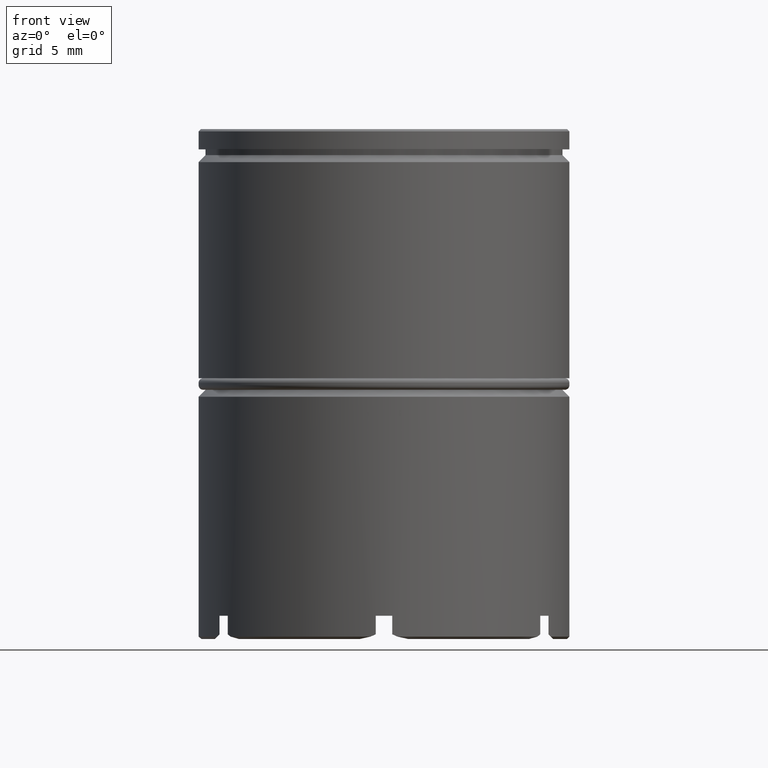
[diagram: clean part render]
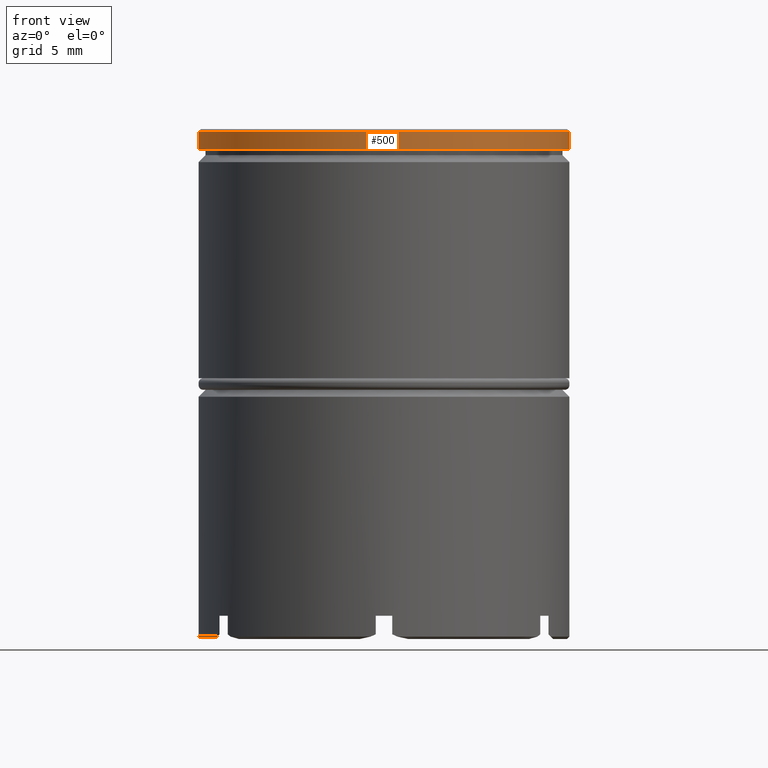
[diagram: same view with one face highlighted and labeled with its STEP entity id]
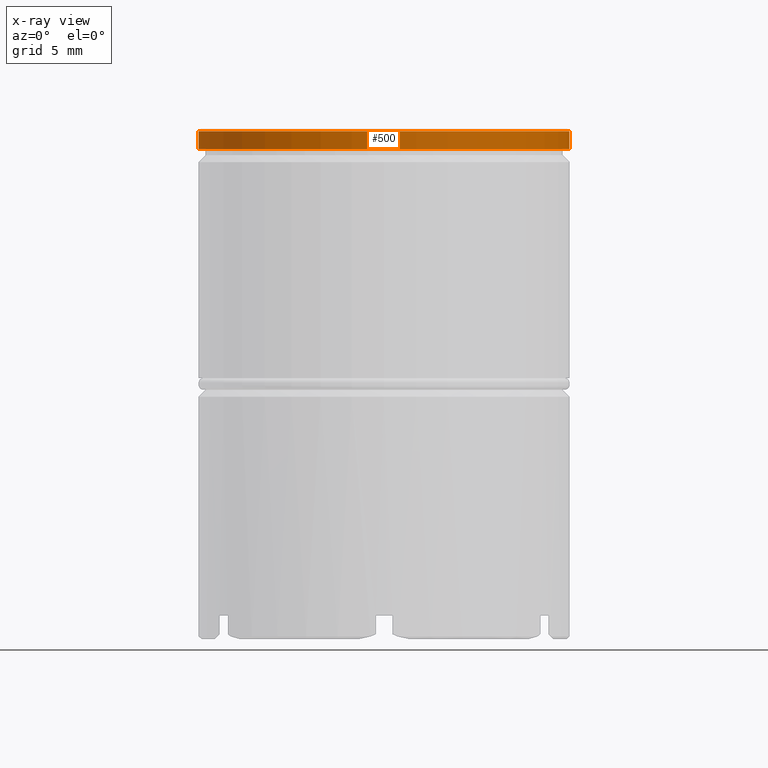
[diagram: x-ray of the same camera — body ghosted, the highlighted face saturated]
A machine part, front view. The second image highlights one B-rep face of the part: STEP entity #500.
The next image is the same camera in x-ray: the body ghosted, the highlighted face saturated — about 0% of this face is hidden behind the body in this view.
In plain terms, the highlighted cylindrical surface (partial cylindrical patch) has radius 8 mm, axis along (-0, -0, 1).
Its self-contained STEP definition (entity closure, byte-faithful):
#41 = DIRECTION ( 'NONE',  ( 1.000000000000000000, 0.000000000000000000, 0.000000000000000000 ) ) ;
#58 = EDGE_CURVE ( 'NONE', #1314, #184, #510, .T. ) ;
#135 = CARTESIAN_POINT ( 'NONE',  ( 8.000000000000000000, 0.000000000000000000, 0.000000000000000000 ) ) ;
#149 = DIRECTION ( 'NONE',  ( -0.000000000000000000, -0.000000000000000000, 1.000000000000000000 ) ) ;
#161 = CARTESIAN_POINT ( 'NONE',  ( -8.000000000000000000, 9.797174393178825657E-16, -0.8749999999999998890 ) ) ;
#174 = ORIENTED_EDGE ( 'NONE', *, *, #497, .T. ) ;
#175 = ORIENTED_EDGE ( 'NONE', *, *, #58, .T. ) ;
#184 = VERTEX_POINT ( 'NONE', #796 ) ;
#221 = VERTEX_POINT ( 'NONE', #482 ) ;
#262 = CARTESIAN_POINT ( 'NONE',  ( 0.000000000000000000, 0.000000000000000000, -0.8749999999999998890 ) ) ;
#271 = LINE ( 'NONE', #135, #460 ) ;
#407 = LINE ( 'NONE', #696, #544 ) ;
#460 = VECTOR ( 'NONE', #883, 1000.000000000000000 ) ;
#482 = CARTESIAN_POINT ( 'NONE',  ( 8.000000000000000000, 0.000000000000000000, -0.09999999999999592548 ) ) ;
#491 = CARTESIAN_POINT ( 'NONE',  ( 0.000000000000000000, 0.000000000000000000, 0.000000000000000000 ) ) ;
#497 = EDGE_CURVE ( 'NONE', #184, #221, #271, .T. ) ;
#500 = ADVANCED_FACE ( 'NONE', ( #1375 ), #990, .T. ) ;
#510 = CIRCLE ( 'NONE', #1540, 8.000000000000000000 ) ;
#544 = VECTOR ( 'NONE', #149, 1000.000000000000000 ) ;
#655 = EDGE_CURVE ( 'NONE', #1314, #1623, #407, .T. ) ;
#696 = CARTESIAN_POINT ( 'NONE',  ( -8.000000000000000000, 9.797174393178825657E-16, 0.000000000000000000 ) ) ;
#731 = EDGE_CURVE ( 'NONE', #221, #1623, #1486, .T. ) ;
#796 = CARTESIAN_POINT ( 'NONE',  ( 8.000000000000000000, 0.000000000000000000, -0.8749999999999998890 ) ) ;
#811 = DIRECTION ( 'NONE',  ( -0.000000000000000000, -0.000000000000000000, 1.000000000000000000 ) ) ;
#825 = CARTESIAN_POINT ( 'NONE',  ( 0.000000000000000000, 0.000000000000000000, -0.09999999999999592548 ) ) ;
#853 = ORIENTED_EDGE ( 'NONE', *, *, #731, .T. ) ;
#883 = DIRECTION ( 'NONE',  ( -0.000000000000000000, -0.000000000000000000, 1.000000000000000000 ) ) ;
#960 = AXIS2_PLACEMENT_3D ( 'NONE', #491, #1281, #1130 ) ;
#975 = ORIENTED_EDGE ( 'NONE', *, *, #655, .F. ) ;
#990 = CYLINDRICAL_SURFACE ( 'NONE', #960, 8.000000000000000000 ) ;
#1130 = DIRECTION ( 'NONE',  ( 1.000000000000000000, 0.000000000000000000, 0.000000000000000000 ) ) ;
#1281 = DIRECTION ( 'NONE',  ( -0.000000000000000000, -0.000000000000000000, 1.000000000000000000 ) ) ;
#1314 = VERTEX_POINT ( 'NONE', #161 ) ;
#1316 = DIRECTION ( 'NONE',  ( 0.000000000000000000, 0.000000000000000000, -1.000000000000000000 ) ) ;
#1323 = EDGE_LOOP ( 'NONE', ( #975, #175, #174, #853 ) ) ;
#1375 = FACE_OUTER_BOUND ( 'NONE', #1323, .T. ) ;
#1380 = CARTESIAN_POINT ( 'NONE',  ( -8.000000000000000000, 9.797174393178825657E-16, -0.09999999999999592548 ) ) ;
#1409 = AXIS2_PLACEMENT_3D ( 'NONE', #825, #1316, #1565 ) ;
#1486 = CIRCLE ( 'NONE', #1409, 8.000000000000000000 ) ;
#1540 = AXIS2_PLACEMENT_3D ( 'NONE', #262, #811, #41 ) ;
#1565 = DIRECTION ( 'NONE',  ( 1.000000000000000000, 0.000000000000000000, 0.000000000000000000 ) ) ;
#1623 = VERTEX_POINT ( 'NONE', #1380 ) ;